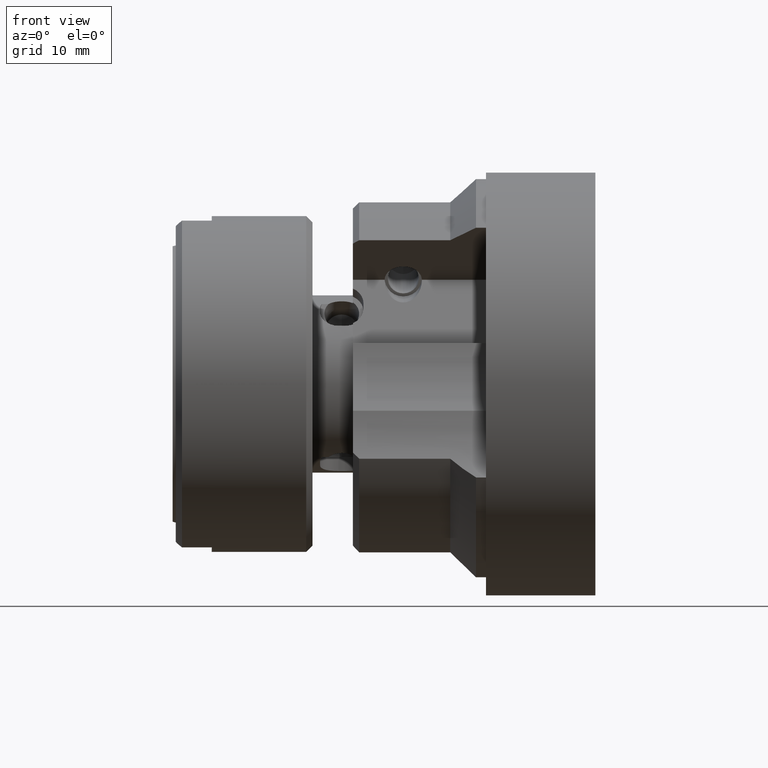
[diagram: clean part render]
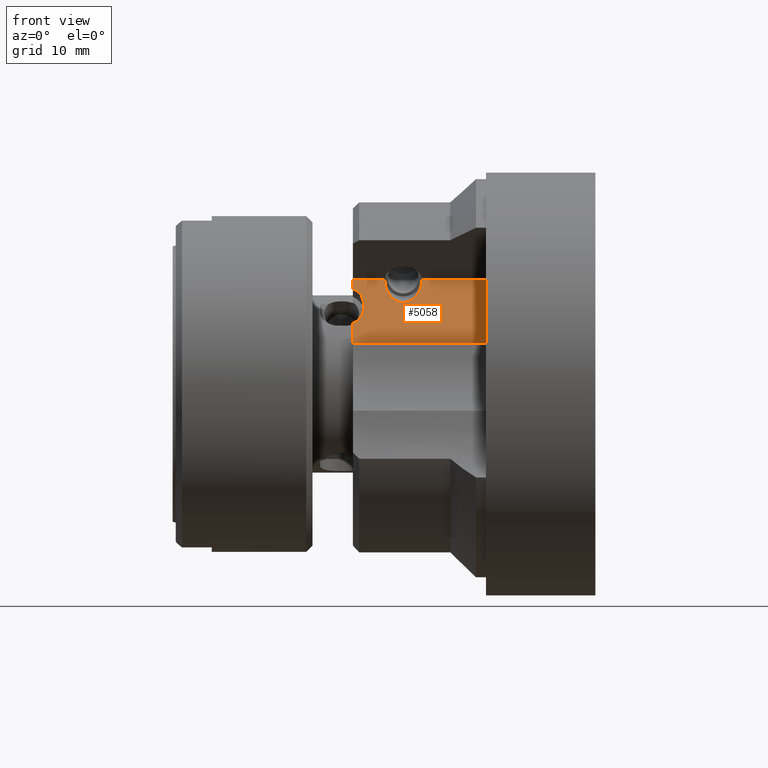
[diagram: same view with one face highlighted and labeled with its STEP entity id]
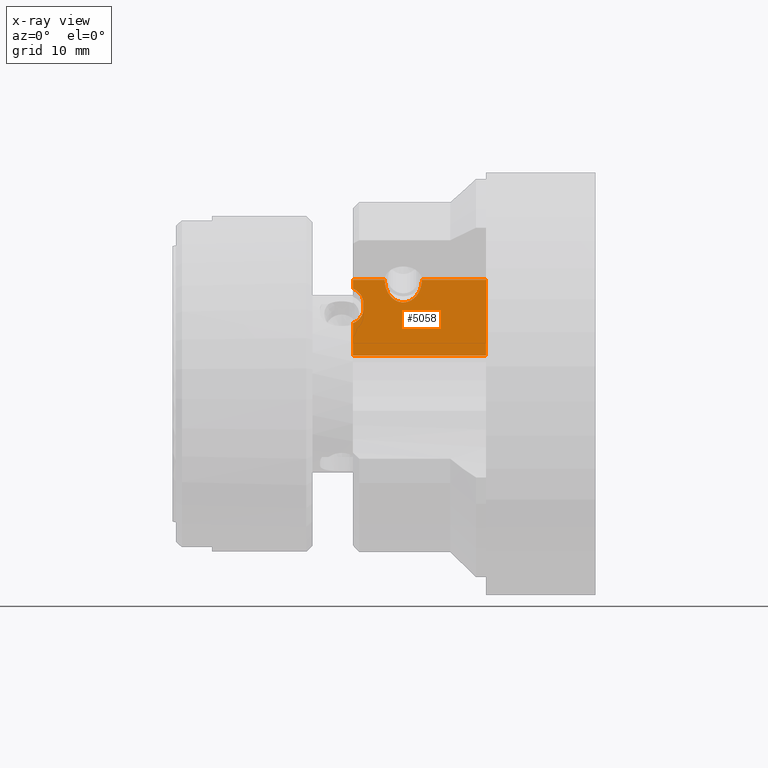
[diagram: x-ray of the same camera — body ghosted, the highlighted face saturated]
A machine part, front view. The second image highlights one B-rep face of the part: STEP entity #5058.
The next image is the same camera in x-ray: the body ghosted, the highlighted face saturated — about 0% of this face is hidden behind the body in this view.
In plain terms, the highlighted planar face has unit normal (0, 0.866, -0.5).
Its self-contained STEP definition (entity closure, byte-faithful):
#4 = VERTEX_POINT ( 'NONE', #4695 ) ;
#147 = EDGE_LOOP ( 'NONE', ( #539, #540, #541, #542, #543, #544, #545, #546, #547, #548, #549 ) ) ;
#402 = VERTEX_POINT ( 'NONE', #895 ) ;
#404 = VERTEX_POINT ( 'NONE', #902 ) ;
#539 = ORIENTED_EDGE ( 'NONE', *, *, #1060, .T. ) ;
#540 = ORIENTED_EDGE ( 'NONE', *, *, #1061, .T. ) ;
#541 = ORIENTED_EDGE ( 'NONE', *, *, #1052, .F. ) ;
#542 = ORIENTED_EDGE ( 'NONE', *, *, #1062, .F. ) ;
#543 = ORIENTED_EDGE ( 'NONE', *, *, #4895, .F. ) ;
#544 = ORIENTED_EDGE ( 'NONE', *, *, #1058, .F. ) ;
#545 = ORIENTED_EDGE ( 'NONE', *, *, #1003, .T. ) ;
#546 = ORIENTED_EDGE ( 'NONE', *, *, #1063, .T. ) ;
#547 = ORIENTED_EDGE ( 'NONE', *, *, #1064, .T. ) ;
#548 = ORIENTED_EDGE ( 'NONE', *, *, #1065, .T. ) ;
#549 = ORIENTED_EDGE ( 'NONE', *, *, #1029, .T. ) ;
#895 = CARTESIAN_POINT ( 'NONE',  ( -37.00000000000000700, -10.91931512776623200, 9.787191414853415600 ) ) ;
#902 = CARTESIAN_POINT ( 'NONE',  ( -37.00000000000000700, -13.94246454430667500, 4.550943026533220200 ) ) ;
#921 = CARTESIAN_POINT ( 'NONE',  ( -28.89999999999999500, -8.995862826508441000, 13.11870852656715200 ) ) ;
#966 =( BOUNDED_CURVE ( )  B_SPLINE_CURVE ( 3, ( #1711, #1716, #1717, #1718 ),
 .UNSPECIFIED., .F., .F. ) 
 B_SPLINE_CURVE_WITH_KNOTS ( ( 4, 4 ),
 ( 0.0000000000000000000, 1.562347685539251500 ),
 .UNSPECIFIED. ) 
 CURVE ( )  GEOMETRIC_REPRESENTATION_ITEM ( )  RATIONAL_B_SPLINE_CURVE ( ( 1.000000000000000000, 0.8067250059695656500, 0.8067250059695656500, 1.000000000000000000 ) ) 
 REPRESENTATION_ITEM ( '' )  );
#969 = VERTEX_POINT ( 'NONE', #921 ) ;
#1003 = EDGE_CURVE ( 'NONE', #4454, #4339, #1152, .T. ) ;
#1029 = EDGE_CURVE ( 'NONE', #402, #404, #1191, .T. ) ;
#1052 = EDGE_CURVE ( 'NONE', #4514, #4376, #1224, .T. ) ;
#1058 = EDGE_CURVE ( 'NONE', #4454, #4, #1232, .T. ) ;
#1060 = EDGE_CURVE ( 'NONE', #404, #4363, #1234, .T. ) ;
#1061 = EDGE_CURVE ( 'NONE', #4363, #4376, #1236, .T. ) ;
#1062 = EDGE_CURVE ( 'NONE', #969, #4514, #966, .T. ) ;
#1063 = EDGE_CURVE ( 'NONE', #4339, #4358, #1238, .T. ) ;
#1064 = EDGE_CURVE ( 'NONE', #4358, #4371, #1239, .T. ) ;
#1065 = EDGE_CURVE ( 'NONE', #4371, #402, #1240, .T. ) ;
#1152 = LINE ( 'NONE', #1558, #1156 ) ;
#1156 = VECTOR ( 'NONE', #1561, 1000.000000000000100 ) ;
#1191 = LINE ( 'NONE', #1620, #1195 ) ;
#1195 = VECTOR ( 'NONE', #1625, 1000.000000000000100 ) ;
#1215 = VECTOR ( 'NONE', #1704, 1000.000000000000000 ) ;
#1224 = LINE ( 'NONE', #1679, #1226 ) ;
#1226 = VECTOR ( 'NONE', #1680, 1000.000000000000000 ) ;
#1232 = LINE ( 'NONE', #1703, #1215 ) ;
#1234 = LINE ( 'NONE', #1706, #1235 ) ;
#1235 = VECTOR ( 'NONE', #1710, 1000.000000000000000 ) ;
#1236 = LINE ( 'NONE', #1712, #1237 ) ;
#1237 = VECTOR ( 'NONE', #1713, 1000.000000000000100 ) ;
#1238 = CIRCLE ( 'NONE', #1446, 2.999999999999998200 ) ;
#1239 = LINE ( 'NONE', #1715, #1241 ) ;
#1240 = CIRCLE ( 'NONE', #1447, 3.000000000000000000 ) ;
#1241 = VECTOR ( 'NONE', #1714, 1000.000000000000100 ) ;
#1446 = AXIS2_PLACEMENT_3D ( 'NONE', #1721, #1722, #1723 ) ;
#1447 = AXIS2_PLACEMENT_3D ( 'NONE', #1726, #1727, #1728 ) ;
#1558 = CARTESIAN_POINT ( 'NONE',  ( -37.00000000000000700, -4.962871617032245600, 20.10405420785851800 ) ) ;
#1561 = DIRECTION ( 'NONE',  ( 0.0000000000000000000, -0.5000000000000038900, -0.8660254037844363800 ) ) ;
#1620 = CARTESIAN_POINT ( 'NONE',  ( -37.00000000000000700, -4.962871617032245600, 20.10405420785851800 ) ) ;
#1625 = DIRECTION ( 'NONE',  ( 0.0000000000000000000, -0.5000000000000038900, -0.8660254037844363800 ) ) ;
#1679 = CARTESIAN_POINT ( 'NONE',  ( -40.00000000000000000, -6.892464544306617900, 16.76190121989377200 ) ) ;
#1680 = DIRECTION ( 'NONE',  ( 1.000000000000000000, -0.0000000000000000000, -0.0000000000000000000 ) ) ;
#1703 = CARTESIAN_POINT ( 'NONE',  ( -40.00000000000000000, -6.892464544306617900, 16.76190121989377200 ) ) ;
#1704 = DIRECTION ( 'NONE',  ( 1.000000000000000000, -0.0000000000000000000, -0.0000000000000000000 ) ) ;
#1706 = CARTESIAN_POINT ( 'NONE',  ( -40.00000000000000000, -13.94246454430667500, 4.550943026533220200 ) ) ;
#1710 = DIRECTION ( 'NONE',  ( 1.000000000000000000, -0.0000000000000000000, -0.0000000000000000000 ) ) ;
#1711 = CARTESIAN_POINT ( 'NONE',  ( -28.89999999999999500, -8.995862826508441000, 13.11870852656715200 ) ) ;
#1712 = CARTESIAN_POINT ( 'NONE',  ( -15.59999999999999600, -6.892464544306617900, 16.76190121989377200 ) ) ;
#1713 = DIRECTION ( 'NONE',  ( 0.0000000000000000000, 0.5000000000000038900, 0.8660254037844363800 ) ) ;
#1714 = DIRECTION ( 'NONE',  ( 0.0000000000000000000, -0.5000000000000038900, -0.8660254037844363800 ) ) ;
#1715 = CARTESIAN_POINT ( 'NONE',  ( -35.29999999999999000, -6.892464544306617900, 16.76190121989377200 ) ) ;
#1716 = CARTESIAN_POINT ( 'NONE',  ( -27.15439045526487400, -8.995862826508441000, 13.11870852656715600 ) ) ;
#1717 = CARTESIAN_POINT ( 'NONE',  ( -25.91485492203698000, -8.126752837917864600, 14.62405118417162300 ) ) ;
#1718 = CARTESIAN_POINT ( 'NONE',  ( -25.90010706867170500, -6.892464544306617900, 16.76190121989377200 ) ) ;
#1721 = CARTESIAN_POINT ( 'NONE',  ( -38.29999999999999000, -9.067464544306634600, 12.99469071343147400 ) ) ;
#1722 = DIRECTION ( 'NONE',  ( 0.0000000000000000000, 0.8660254037844364900, -0.5000000000000040000 ) ) ;
#1723 = DIRECTION ( 'NONE',  ( 0.0000000000000000000, 0.5000000000000038900, 0.8660254037844363800 ) ) ;
#1726 = CARTESIAN_POINT ( 'NONE',  ( -38.29999999999999700, -9.567464544306641700, 12.12866530964703500 ) ) ;
#1727 = DIRECTION ( 'NONE',  ( 0.0000000000000000000, 0.8660254037844364900, -0.5000000000000040000 ) ) ;
#1728 = DIRECTION ( 'NONE',  ( 0.0000000000000000000, 0.5000000000000038900, 0.8660254037844364900 ) ) ;
#2035 = CARTESIAN_POINT ( 'NONE',  ( -37.00000000000000700, -7.715613960847044000, 15.33616460822509500 ) ) ;
#2045 = CARTESIAN_POINT ( 'NONE',  ( -35.29999999999999000, -9.067464544306645300, 12.99469071343145800 ) ) ;
#2050 = CARTESIAN_POINT ( 'NONE',  ( -15.59999999999999600, -13.94246454430667400, 4.550943026533220200 ) ) ;
#2058 = CARTESIAN_POINT ( 'NONE',  ( -35.29999999999999000, -9.567464544306631100, 12.12866530964705400 ) ) ;
#2063 = CARTESIAN_POINT ( 'NONE',  ( -15.59999999999999600, -6.892464544306621500, 16.76190121989376900 ) ) ;
#2078 = CARTESIAN_POINT ( 'NONE',  ( -37.00000000000000700, -6.892464544306617900, 16.76190121989377200 ) ) ;
#2118 = CARTESIAN_POINT ( 'NONE',  ( -25.90010706867170500, -6.892464544306617900, 16.76190121989377200 ) ) ;
#2644 = AXIS2_PLACEMENT_3D ( 'NONE', #3927, #3933, #3934 ) ;
#3162 = CARTESIAN_POINT ( 'NONE',  ( -31.89989293132828500, -6.892464544306617900, 16.76190121989377200 ) ) ;
#3163 = CARTESIAN_POINT ( 'NONE',  ( -31.88514507796300600, -8.126752837917864600, 14.62405118417162300 ) ) ;
#3167 = CARTESIAN_POINT ( 'NONE',  ( -30.64560954473511600, -8.995862826508441000, 13.11870852656715600 ) ) ;
#3168 = CARTESIAN_POINT ( 'NONE',  ( -28.89999999999999500, -8.995862826508441000, 13.11870852656715200 ) ) ;
#3553 = FACE_OUTER_BOUND ( 'NONE', #147, .T. ) ;
#3927 = CARTESIAN_POINT ( 'NONE',  ( -40.00000000000000000, -6.892464544306617900, 16.76190121989377200 ) ) ;
#3931 = PLANE ( 'NONE',  #2644 ) ;
#3933 = DIRECTION ( 'NONE',  ( 0.0000000000000000000, 0.8660254037844363800, -0.5000000000000038900 ) ) ;
#3934 = DIRECTION ( 'NONE',  ( 0.0000000000000000000, 0.5000000000000038900, 0.8660254037844363800 ) ) ;
#4339 = VERTEX_POINT ( 'NONE', #2035 ) ;
#4358 = VERTEX_POINT ( 'NONE', #2045 ) ;
#4363 = VERTEX_POINT ( 'NONE', #2050 ) ;
#4371 = VERTEX_POINT ( 'NONE', #2058 ) ;
#4376 = VERTEX_POINT ( 'NONE', #2063 ) ;
#4454 = VERTEX_POINT ( 'NONE', #2078 ) ;
#4514 = VERTEX_POINT ( 'NONE', #2118 ) ;
#4695 = CARTESIAN_POINT ( 'NONE',  ( -31.89989293132828500, -6.892464544306617900, 16.76190121989377200 ) ) ;
#4701 =( BOUNDED_CURVE ( )  B_SPLINE_CURVE ( 3, ( #3162, #3163, #3167, #3168 ),
 .UNSPECIFIED., .F., .F. ) 
 B_SPLINE_CURVE_WITH_KNOTS ( ( 4, 4 ),
 ( 4.720837621640335200, 6.283185307179586200 ),
 .UNSPECIFIED. ) 
 CURVE ( )  GEOMETRIC_REPRESENTATION_ITEM ( )  RATIONAL_B_SPLINE_CURVE ( ( 1.000000000000000000, 0.8067250059695656500, 0.8067250059695656500, 1.000000000000000000 ) ) 
 REPRESENTATION_ITEM ( '' )  );
#4895 = EDGE_CURVE ( 'NONE', #4, #969, #4701, .T. ) ;
#5058 = ADVANCED_FACE ( 'NONE', ( #3553 ), #3931, .F. ) ;